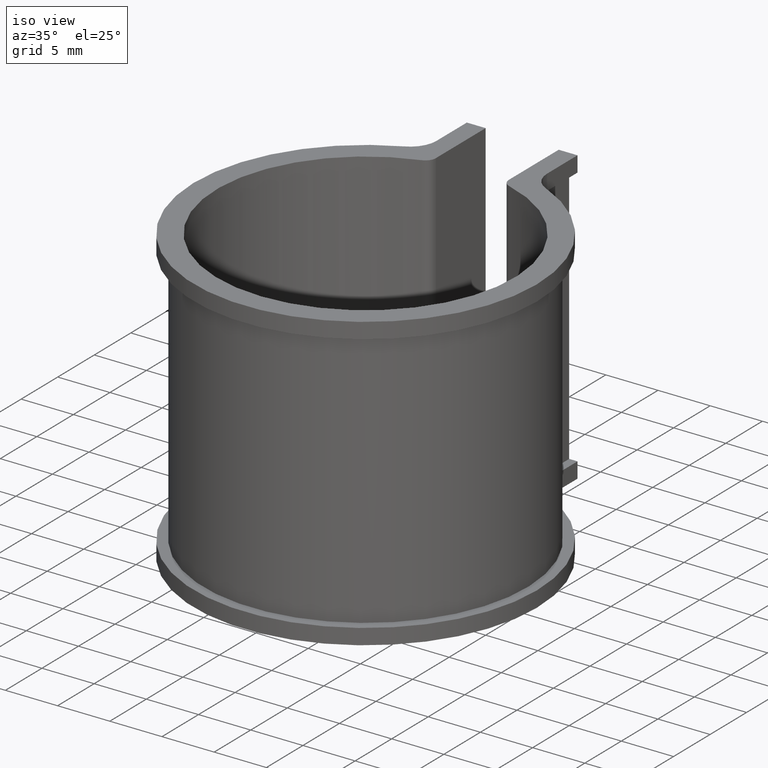
[diagram: clean part render]
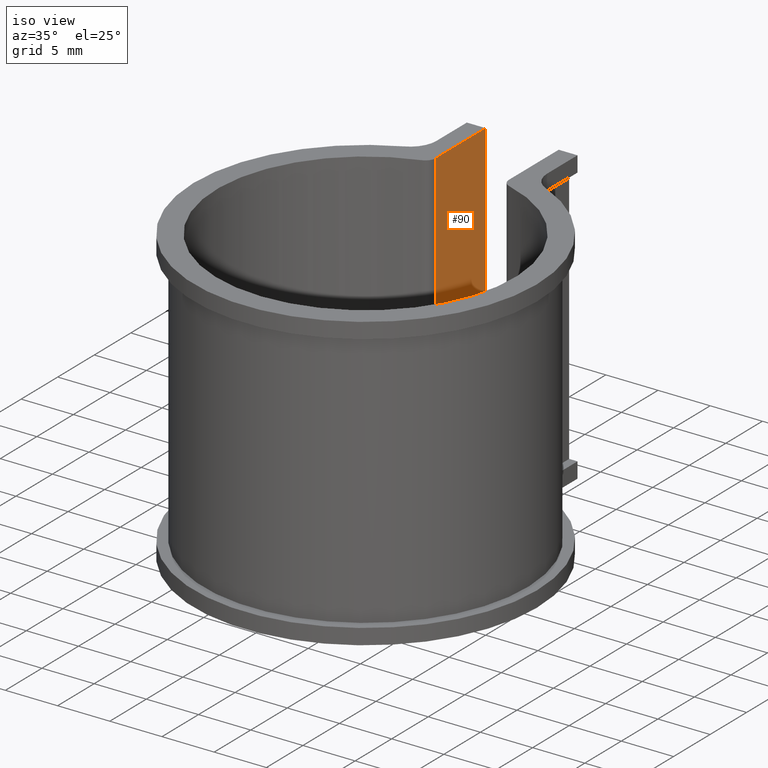
[diagram: same view with one face highlighted and labeled with its STEP entity id]
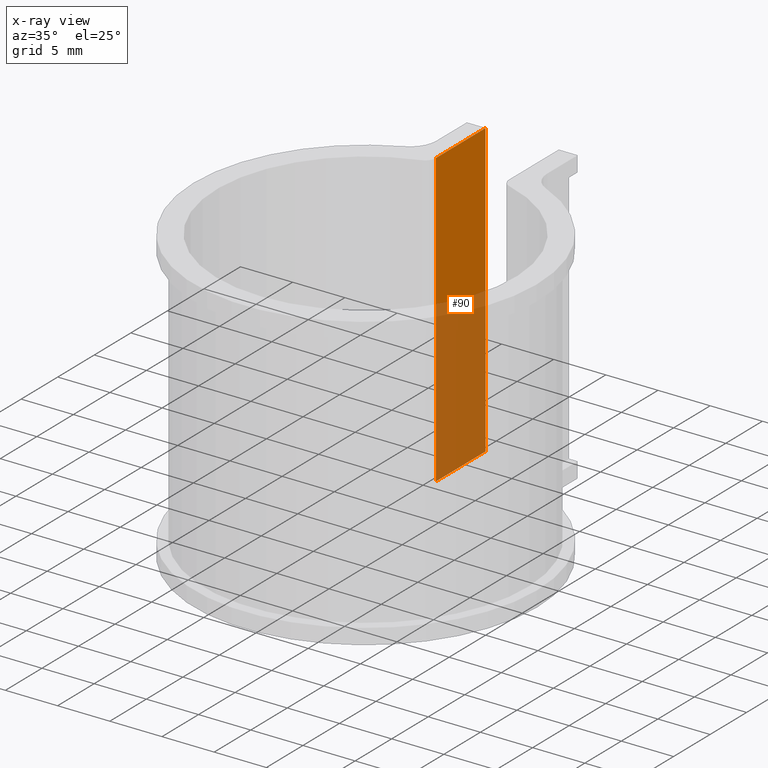
[diagram: x-ray of the same camera — body ghosted, the highlighted face saturated]
A machine part, iso view. The second image highlights one B-rep face of the part: STEP entity #90.
The next image is the same camera in x-ray: the body ghosted, the highlighted face saturated — about 52% of this face is hidden behind the body in this view.
In plain terms, the highlighted planar face has unit normal (1, -0, 0).
Its self-contained STEP definition (entity closure, byte-faithful):
#90 = ADVANCED_FACE( '', ( #132 ), #133, .T. );
#132 = FACE_OUTER_BOUND( '', #184, .T. );
#133 = PLANE( '', #185 );
#184 = EDGE_LOOP( '', ( #351, #352, #353, #354 ) );
#185 = AXIS2_PLACEMENT_3D( '', #355, #356, #357 );
#351 = ORIENTED_EDGE( '', *, *, #469, .F. );
#352 = ORIENTED_EDGE( '', *, *, #492, .T. );
#353 = ORIENTED_EDGE( '', *, *, #484, .T. );
#354 = ORIENTED_EDGE( '', *, *, #448, .T. );
#355 = CARTESIAN_POINT( '', ( -3.50000000000000, 13.8547500879662, -25.0000000000000 ) );
#356 = DIRECTION( '', ( 1.00000000000000, -5.55111512312578E-017, 0.000000000000000 ) );
#357 = DIRECTION( '', ( -5.55111512312578E-017, -1.00000000000000, 0.000000000000000 ) );
#448 = EDGE_CURVE( '', #540, #538, #541, .T. );
#469 = EDGE_CURVE( '', #576, #538, #578, .T. );
#484 = EDGE_CURVE( '', #599, #540, #600, .T. );
#492 = EDGE_CURVE( '', #576, #599, #612, .F. );
#538 = VERTEX_POINT( '', #671 );
#540 = VERTEX_POINT( '', #674 );
#541 = LINE( '', #675, #676 );
#576 = VERTEX_POINT( '', #723 );
#578 = LINE( '', #725, #726 );
#599 = VERTEX_POINT( '', #756 );
#600 = LINE( '', #757, #758 );
#612 = LINE( '', #772, #773 );
#671 = CARTESIAN_POINT( '', ( -3.50000000000000, 21.4219465658192, 1.50000000000000 ) );
#674 = CARTESIAN_POINT( '', ( -3.50000000000000, 21.4219465658192, -26.5000000000000 ) );
#675 = CARTESIAN_POINT( '', ( -3.50000000000000, 21.4219465658192, -25.0000000000000 ) );
#676 = VECTOR( '', #820, 1000.00000000000 );
#723 = CARTESIAN_POINT( '', ( -3.50000000000000, 14.6128060275910, 1.50000000000000 ) );
#725 = CARTESIAN_POINT( '', ( -3.50000000000000, 13.8547500879662, 1.50000000000000 ) );
#726 = VECTOR( '', #857, 1000.00000000000 );
#756 = CARTESIAN_POINT( '', ( -3.50000000000000, 14.6128060275910, -26.5000000000000 ) );
#757 = CARTESIAN_POINT( '', ( -3.50000000000000, 13.8547500879662, -26.5000000000000 ) );
#758 = VECTOR( '', #882, 1000.00000000000 );
#772 = CARTESIAN_POINT( '', ( -3.50000000000000, 14.6128060275910, -25.0000000000000 ) );
#773 = VECTOR( '', #900, 1000.00000000000 );
#820 = DIRECTION( '', ( 0.000000000000000, 0.000000000000000, 1.00000000000000 ) );
#857 = DIRECTION( '', ( 6.12303176911189E-017, 1.00000000000000, 0.000000000000000 ) );
#882 = DIRECTION( '', ( 6.12303176911189E-017, 1.00000000000000, 0.000000000000000 ) );
#900 = DIRECTION( '', ( 0.000000000000000, 0.000000000000000, 1.00000000000000 ) );